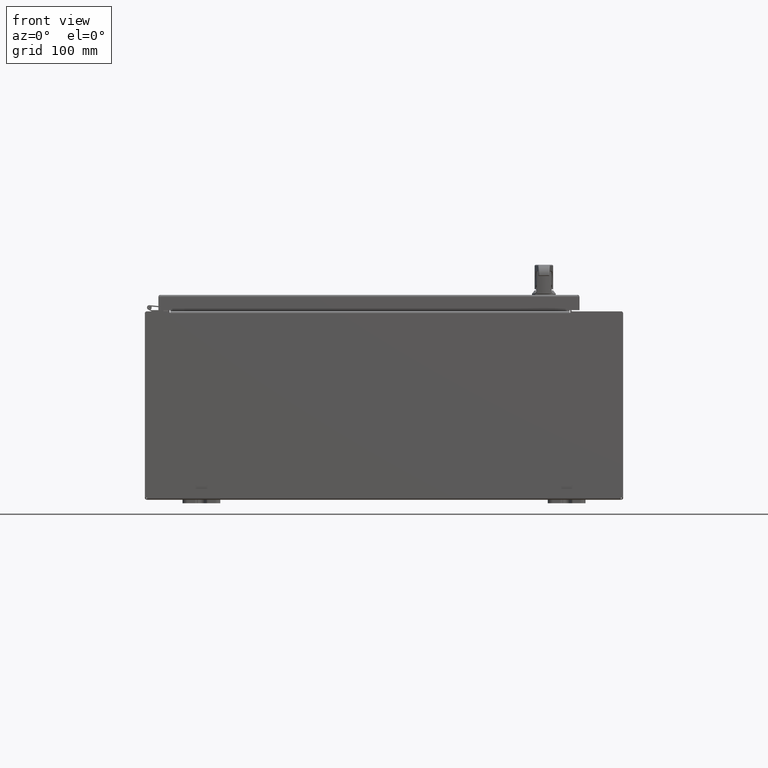
[diagram: clean part render]
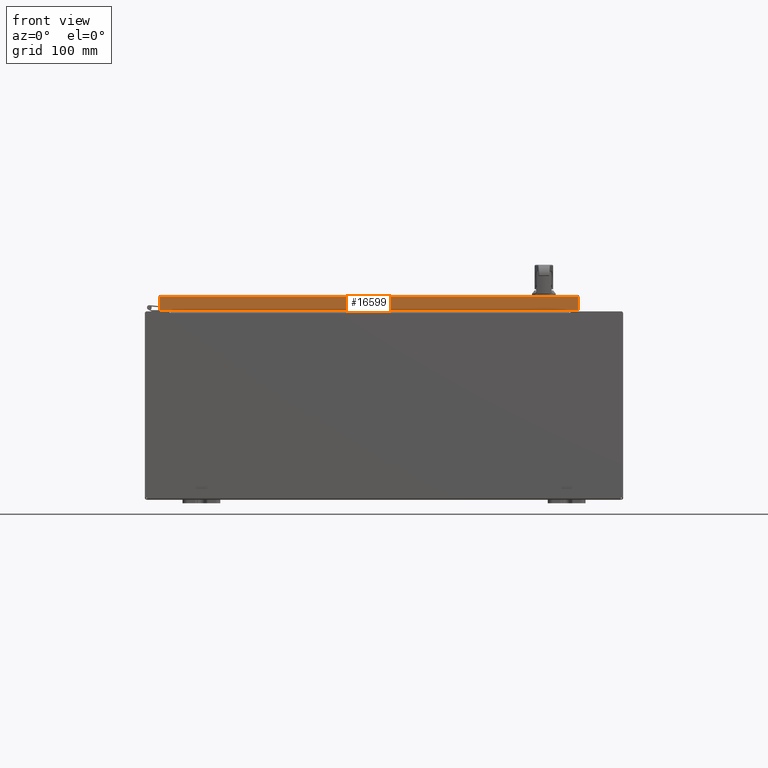
[diagram: same view with one face highlighted and labeled with its STEP entity id]
A machine part, front view. The second image highlights one B-rep face of the part: STEP entity #16599.
In plain terms, the highlighted planar face has unit normal (0, -1, 0).
Its self-contained STEP definition (entity closure, byte-faithful):
#16360=CARTESIAN_POINT('',(22.269042893218817,-2.185478E-017,-0.031249999999999));
#16361=VERTEX_POINT('',#16360);
#16362=CARTESIAN_POINT('',(0.074707106781185,-2.185478E-017,-0.031249999999999));
#16363=VERTEX_POINT('',#16362);
#16364=CARTESIAN_POINT('',(22.269042893218817,-2.265101E-017,-0.03125));
#16365=DIRECTION('',(-1.0,0.0,0.0));
#16366=VECTOR('',#16365,22.194335786437634);
#16367=LINE('',#16364,#16366);
#16368=EDGE_CURVE('',#16361,#16363,#16367,.T.);
#16444=CARTESIAN_POINT('',(0.074707106781184,8.741914E-017,-0.738499999999999));
#16445=VERTEX_POINT('',#16444);
#16446=CARTESIAN_POINT('',(0.074707106781184,9.187969E-017,-0.738499999999999));
#16447=DIRECTION('',(0.0,0.0,1.0));
#16448=VECTOR('',#16447,0.70725);
#16449=LINE('',#16446,#16448);
#16450=EDGE_CURVE('',#16445,#16363,#16449,.T.);
#16552=CARTESIAN_POINT('',(22.269042893218817,8.741914E-017,-0.738499999999999));
#16553=VERTEX_POINT('',#16552);
#16554=CARTESIAN_POINT('',(22.269042893218817,-2.185478E-017,-0.031249999999999));
#16555=DIRECTION('',(0.0,0.0,-1.0));
#16556=VECTOR('',#16555,0.70725);
#16557=LINE('',#16554,#16556);
#16558=EDGE_CURVE('',#16361,#16553,#16557,.T.);
#16576=CARTESIAN_POINT('',(22.269042893218817,8.741914E-017,-0.738499999999999));
#16577=DIRECTION('',(-1.0,0.0,0.0));
#16578=VECTOR('',#16577,22.19433578643763);
#16579=LINE('',#16576,#16578);
#16580=EDGE_CURVE('',#16553,#16445,#16579,.T.);
#16588=CARTESIAN_POINT('',(11.171875000000002,2.185478E-017,-0.335225422747138));
#16589=DIRECTION('',(0.0,-1.0,0.0));
#16590=DIRECTION('',(1.0,0.0,0.0));
#16591=AXIS2_PLACEMENT_3D('',#16588,#16589,#16590);
#16592=PLANE('',#16591);
#16593=ORIENTED_EDGE('',*,*,#16368,.T.);
#16594=ORIENTED_EDGE('',*,*,#16450,.F.);
#16595=ORIENTED_EDGE('',*,*,#16580,.F.);
#16596=ORIENTED_EDGE('',*,*,#16558,.F.);
#16597=EDGE_LOOP('',(#16593,#16594,#16595,#16596));
#16598=FACE_OUTER_BOUND('',#16597,.T.);
#16599=ADVANCED_FACE('',(#16598),#16592,.T.);